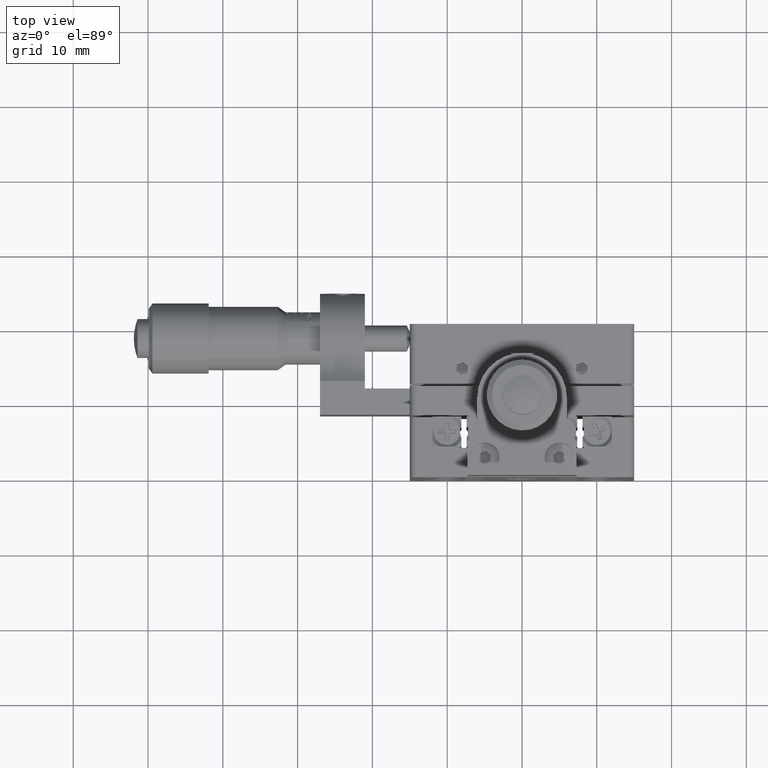
[diagram: clean part render]
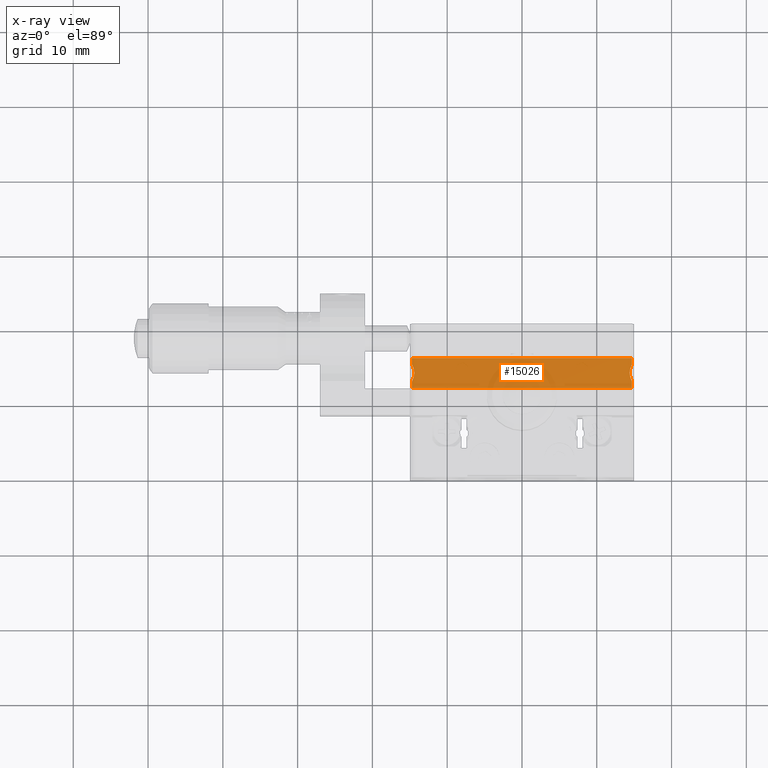
[diagram: x-ray — body ghosted, one internal face saturated and labeled with its STEP entity id]
A machine part, top view, then the same camera in x-ray: the body is ghosted and one INTERNAL B-rep face — a face not visible from any outside direction — is saturated and labeled: STEP entity #15026.
In plain terms, the highlighted planar face has unit normal (0, -0, 1).
Its self-contained STEP definition (entity closure, byte-faithful):
#62 = CARTESIAN_POINT ( 'NONE',  ( -14.61262696503833800, 13.45263847771911800, -11.99999999999999300 ) ) ;
#502 = VERTEX_POINT ( 'NONE', #17944 ) ;
#596 = EDGE_CURVE ( 'NONE', #39610, #29334, #28396, .T. ) ;
#1216 = VECTOR ( 'NONE', #35718, 1000.000000000000000 ) ;
#1345 = EDGE_CURVE ( 'NONE', #22414, #502, #54074, .T. ) ;
#2498 = VECTOR ( 'NONE', #52463, 1000.000000000000000 ) ;
#2525 = VERTEX_POINT ( 'NONE', #52800 ) ;
#3316 = LINE ( 'NONE', #21748, #45333 ) ;
#3934 = B_SPLINE_CURVE_WITH_KNOTS ( 'NONE', 3,
 ( #36975, #32782, #6770, #11112, #54166, #28965 ),
 .UNSPECIFIED., .F., .F.,
 ( 4, 2, 4 ),
 ( 0.004036139601343803100, 0.004618627298746543300, 0.005201114996149283500 ),
 .UNSPECIFIED. ) ;
#4557 = DIRECTION ( 'NONE',  ( 0.0000000000000000000, 1.000000000000000000, 2.168404344971007900E-016 ) ) ;
#5255 = ORIENTED_EDGE ( 'NONE', *, *, #54872, .T. ) ;
#6331 = AXIS2_PLACEMENT_3D ( 'NONE', #16139, #32880, #28513 ) ;
#6714 = ORIENTED_EDGE ( 'NONE', *, *, #596, .T. ) ;
#6770 = CARTESIAN_POINT ( 'NONE',  ( -14.43086931973859400, 14.79199559765370600, -11.99999999999999600 ) ) ;
#7078 = ORIENTED_EDGE ( 'NONE', *, *, #22110, .F. ) ;
#7700 = CARTESIAN_POINT ( 'NONE',  ( -14.70000000000000100, 12.40000000000002900, -11.99999999999999600 ) ) ;
#8312 = CARTESIAN_POINT ( 'NONE',  ( 14.69999999999999800, 12.40000000000002900, -11.99999999999999600 ) ) ;
#9885 = LINE ( 'NONE', #7700, #17333 ) ;
#10008 = CARTESIAN_POINT ( 'NONE',  ( -14.40000000000000200, 14.40000000000003100, -11.99999999999999600 ) ) ;
#10339 = CARTESIAN_POINT ( 'NONE',  ( 14.61247375869749400, 15.34705442640396300, -11.99999999999999300 ) ) ;
#11057 = ORIENTED_EDGE ( 'NONE', *, *, #1345, .F. ) ;
#11112 = CARTESIAN_POINT ( 'NONE',  ( -14.53772410829446400, 15.16707837868904800, -11.99999999999999100 ) ) ;
#11619 = FACE_OUTER_BOUND ( 'NONE', #53401, .T. ) ;
#13413 = CARTESIAN_POINT ( 'NONE',  ( 14.69999999999999800, 12.40000000000002900, -11.99999999999999600 ) ) ;
#14515 = CARTESIAN_POINT ( 'NONE',  ( 14.69999999999999800, 15.52249721603221600, -11.99999999999999600 ) ) ;
#14704 = CARTESIAN_POINT ( 'NONE',  ( 14.39999999999999900, 14.59462000658013500, -11.99999999999999600 ) ) ;
#15026 = ADVANCED_FACE ( 'NONE', ( #11619 ), #45923, .F. ) ;
#15312 = VERTEX_POINT ( 'NONE', #18025 ) ;
#16139 = CARTESIAN_POINT ( 'NONE',  ( 14.69999999999999800, 12.40000000000002900, -11.99999999999999600 ) ) ;
#17333 = VECTOR ( 'NONE', #55291, 1000.000000000000000 ) ;
#17432 = CARTESIAN_POINT ( 'NONE',  ( 14.69999999999999800, 16.40000000000003400, -11.99999999999999600 ) ) ;
#17944 = CARTESIAN_POINT ( 'NONE',  ( -14.70000000000000100, 16.40000000000003400, -11.99999999999999600 ) ) ;
#17962 = EDGE_CURVE ( 'NONE', #15312, #31477, #3316, .T. ) ;
#18025 = CARTESIAN_POINT ( 'NONE',  ( 14.69999999999999800, 12.40000000000002900, -11.99999999999999600 ) ) ;
#19167 = CARTESIAN_POINT ( 'NONE',  ( 14.39999999999999900, 14.20528206730994100, -11.99999999999999300 ) ) ;
#20593 = EDGE_CURVE ( 'NONE', #35040, #502, #9885, .T. ) ;
#21282 = ORIENTED_EDGE ( 'NONE', *, *, #45847, .T. ) ;
#21644 = ORIENTED_EDGE ( 'NONE', *, *, #43382, .T. ) ;
#21748 = CARTESIAN_POINT ( 'NONE',  ( 14.69999999999999800, 12.40000000000002900, -11.99999999999999600 ) ) ;
#21808 = CARTESIAN_POINT ( 'NONE',  ( 14.69999999999999800, 15.52249721603221600, -11.99999999999999600 ) ) ;
#22110 = EDGE_CURVE ( 'NONE', #39610, #22414, #53903, .T. ) ;
#22414 = VERTEX_POINT ( 'NONE', #54522 ) ;
#22461 = CARTESIAN_POINT ( 'NONE',  ( -14.70000000000000100, 12.40000000000002900, -11.99999999999999600 ) ) ;
#23008 = CARTESIAN_POINT ( 'NONE',  ( 14.39999999999999900, 14.40000000000003100, -11.99999999999999600 ) ) ;
#23561 = CARTESIAN_POINT ( 'NONE',  ( 14.69999999999999800, 13.27750278396784500, -11.99999999999999600 ) ) ;
#24970 = CARTESIAN_POINT ( 'NONE',  ( -14.70000000000000100, 13.27750278396784500, -11.99999999999999600 ) ) ;
#25050 = ORIENTED_EDGE ( 'NONE', *, *, #39173, .T. ) ;
#26376 = VERTEX_POINT ( 'NONE', #38995 ) ;
#26635 = CARTESIAN_POINT ( 'NONE',  ( 14.39999999999999900, 14.40000000000003100, -11.99999999999999600 ) ) ;
#27074 = CARTESIAN_POINT ( 'NONE',  ( 14.39999999999999900, 14.40000000000003100, -11.99999999999999600 ) ) ;
#27305 = CARTESIAN_POINT ( 'NONE',  ( -14.70000000000000100, 15.52249721603221600, -11.99999999999999600 ) ) ;
#27376 = CARTESIAN_POINT ( 'NONE',  ( 14.61262696503833800, 13.45263847771912100, -11.99999999999999600 ) ) ;
#28396 = B_SPLINE_CURVE_WITH_KNOTS ( 'NONE', 3,
 ( #14515, #10339, #40894, #40725, #14704, #27074 ),
 .UNSPECIFIED., .F., .F.,
 ( 4, 2, 4 ),
 ( 0.003178400664213447300, 0.003759382009767698300, 0.004340363355321949700 ),
 .UNSPECIFIED. ) ;
#28513 = DIRECTION ( 'NONE',  ( 0.0000000000000000000, -1.000000000000000000, -2.168404344971007900E-016 ) ) ;
#28965 = CARTESIAN_POINT ( 'NONE',  ( -14.70000000000000100, 15.52249721603221600, -11.99999999999999600 ) ) ;
#29334 = VERTEX_POINT ( 'NONE', #26635 ) ;
#30656 = ORIENTED_EDGE ( 'NONE', *, *, #20593, .T. ) ;
#31289 = CARTESIAN_POINT ( 'NONE',  ( -14.43082863649798700, 14.00809690093732100, -11.99999999999999100 ) ) ;
#31477 = VERTEX_POINT ( 'NONE', #42572 ) ;
#31851 = CARTESIAN_POINT ( 'NONE',  ( -14.53786111728544500, 13.63249104438001400, -11.99999999999999600 ) ) ;
#32782 = CARTESIAN_POINT ( 'NONE',  ( -14.40000000000000200, 14.59462000658013800, -11.99999999999999300 ) ) ;
#32880 = DIRECTION ( 'NONE',  ( 0.0000000000000000000, -2.168404344971007900E-016, 1.000000000000000000 ) ) ;
#33459 = B_SPLINE_CURVE_WITH_KNOTS ( 'NONE', 3,
 ( #23008, #19167, #49533, #40662, #27376, #23561 ),
 .UNSPECIFIED., .F., .F.,
 ( 4, 2, 4 ),
 ( 0.004340363355321949700, 0.004921637030756065600, 0.005502910706190181600 ),
 .UNSPECIFIED. ) ;
#34550 = CARTESIAN_POINT ( 'NONE',  ( -14.70000000000000100, 13.27750278396784500, -11.99999999999999600 ) ) ;
#35040 = VERTEX_POINT ( 'NONE', #27305 ) ;
#35105 = LINE ( 'NONE', #13413, #2498 ) ;
#35419 = DIRECTION ( 'NONE',  ( 0.0000000000000000000, 1.000000000000000000, 2.168404344971007900E-016 ) ) ;
#35718 = DIRECTION ( 'NONE',  ( -1.000000000000000000, 0.0000000000000000000, 0.0000000000000000000 ) ) ;
#36975 = CARTESIAN_POINT ( 'NONE',  ( -14.40000000000000200, 14.40000000000003100, -11.99999999999999600 ) ) ;
#38995 = CARTESIAN_POINT ( 'NONE',  ( -14.70000000000000100, 12.40000000000002900, -11.99999999999999600 ) ) ;
#39173 = EDGE_CURVE ( 'NONE', #15312, #26376, #35105, .T. ) ;
#39610 = VERTEX_POINT ( 'NONE', #21808 ) ;
#40385 = CARTESIAN_POINT ( 'NONE',  ( -14.40000000000000600, 14.20528206730994100, -11.99999999999999600 ) ) ;
#40416 = VECTOR ( 'NONE', #4557, 1000.000000000000000 ) ;
#40662 = CARTESIAN_POINT ( 'NONE',  ( 14.53786111728543800, 13.63249104438001100, -11.99999999999999100 ) ) ;
#40725 = CARTESIAN_POINT ( 'NONE',  ( 14.43086931973859100, 14.79199559765370600, -11.99999999999999100 ) ) ;
#40894 = CARTESIAN_POINT ( 'NONE',  ( 14.53772410829446700, 15.16707837868905000, -11.99999999999999600 ) ) ;
#42572 = CARTESIAN_POINT ( 'NONE',  ( 14.69999999999999800, 13.27750278396784500, -11.99999999999999600 ) ) ;
#42726 = EDGE_CURVE ( 'NONE', #2525, #35040, #3934, .T. ) ;
#43382 = EDGE_CURVE ( 'NONE', #53130, #2525, #45262, .T. ) ;
#43741 = ORIENTED_EDGE ( 'NONE', *, *, #17962, .F. ) ;
#45262 = B_SPLINE_CURVE_WITH_KNOTS ( 'NONE', 3,
 ( #34550, #62, #31851, #31289, #40385, #10008 ),
 .UNSPECIFIED., .F., .F.,
 ( 4, 2, 4 ),
 ( 0.002870578030889458900, 0.003453358816116631000, 0.004036139601343803100 ),
 .UNSPECIFIED. ) ;
#45333 = VECTOR ( 'NONE', #52071, 1000.000000000000000 ) ;
#45528 = VECTOR ( 'NONE', #35419, 1000.000000000000000 ) ;
#45847 = EDGE_CURVE ( 'NONE', #29334, #31477, #33459, .T. ) ;
#45923 = PLANE ( 'NONE',  #6331 ) ;
#46888 = LINE ( 'NONE', #22461, #45528 ) ;
#47969 = ORIENTED_EDGE ( 'NONE', *, *, #42726, .T. ) ;
#49533 = CARTESIAN_POINT ( 'NONE',  ( 14.43082863649798500, 14.00809690093732100, -11.99999999999999600 ) ) ;
#52071 = DIRECTION ( 'NONE',  ( 0.0000000000000000000, 1.000000000000000000, 2.168404344971007900E-016 ) ) ;
#52463 = DIRECTION ( 'NONE',  ( -1.000000000000000000, 0.0000000000000000000, 0.0000000000000000000 ) ) ;
#52800 = CARTESIAN_POINT ( 'NONE',  ( -14.40000000000000200, 14.40000000000003100, -11.99999999999999600 ) ) ;
#53130 = VERTEX_POINT ( 'NONE', #24970 ) ;
#53401 = EDGE_LOOP ( 'NONE', ( #7078, #6714, #21282, #43741, #25050, #5255, #21644, #47969, #30656, #11057 ) ) ;
#53903 = LINE ( 'NONE', #8312, #40416 ) ;
#54074 = LINE ( 'NONE', #17432, #1216 ) ;
#54166 = CARTESIAN_POINT ( 'NONE',  ( -14.61247375869749900, 15.34705442640396600, -11.99999999999999600 ) ) ;
#54522 = CARTESIAN_POINT ( 'NONE',  ( 14.69999999999999800, 16.40000000000003400, -11.99999999999999600 ) ) ;
#54872 = EDGE_CURVE ( 'NONE', #26376, #53130, #46888, .T. ) ;
#55291 = DIRECTION ( 'NONE',  ( 0.0000000000000000000, 1.000000000000000000, 2.168404344971007900E-016 ) ) ;